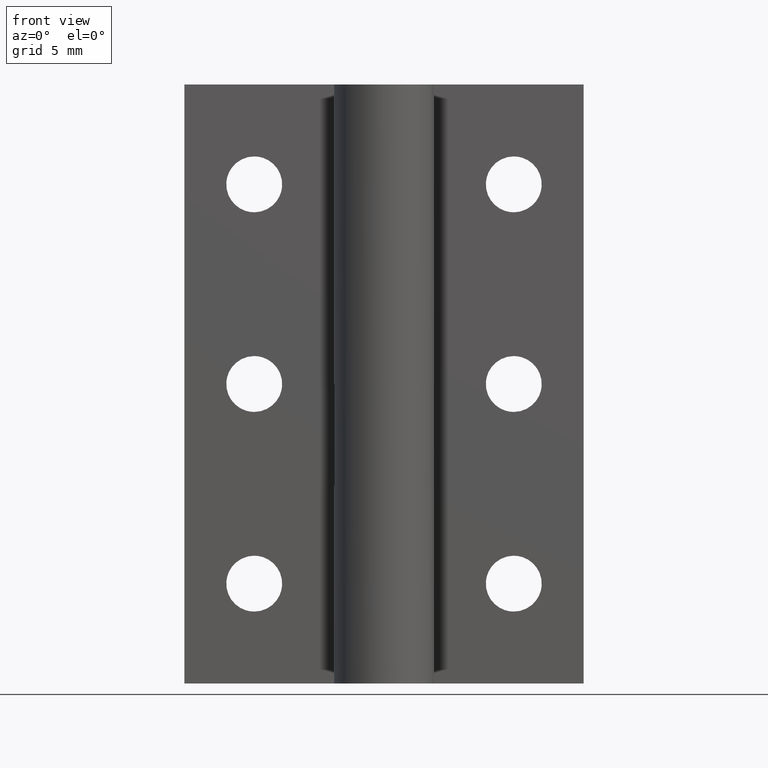
[diagram: clean part render]
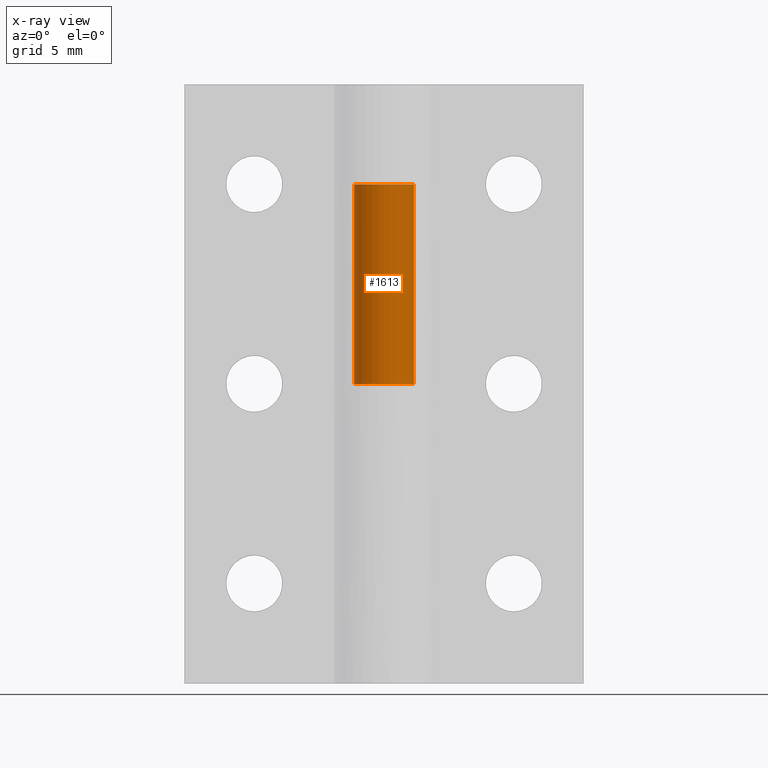
[diagram: x-ray — body ghosted, one internal face saturated and labeled with its STEP entity id]
A machine part, front view, then the same camera in x-ray: the body is ghosted and one INTERNAL B-rep face — a face not visible from any outside direction — is saturated and labeled: STEP entity #1613.
In plain terms, the highlighted face is a freeform B-spline surface patch.
Its self-contained STEP definition (entity closure, byte-faithful):
#869=CARTESIAN_POINT('',(0.455540400051268,1.429154625616532,25.0));
#870=VERTEX_POINT('',#869);
#876=CARTESIAN_POINT('',(-0.897680820069798,1.201735888321064,25.0));
#877=VERTEX_POINT('',#876);
#878=CARTESIAN_POINT('',(-0.897680820069798,1.201735888321064,25.0));
#879=CARTESIAN_POINT('',(-1.843188879337448,0.495453868890164,25.0));
#880=CARTESIAN_POINT('',(-1.379222912589689,-0.589698361357411,25.0));
#881=CARTESIAN_POINT('',(-0.915256945841930,-1.674850591604986,25.0));
#882=CARTESIAN_POINT('',(0.248599795397756,-1.479255941927628,25.0));
#883=CARTESIAN_POINT('',(1.412456536637444,-1.283661292250269,25.0));
#884=CARTESIAN_POINT('',(1.496217350875996,-0.106459564800990,25.0));
#885=CARTESIAN_POINT('',(1.579978165114550,1.070742162648288,25.0));
#886=CARTESIAN_POINT('',(0.455540400051268,1.429154625616532,25.0));
#894=(BOUNDED_CURVE()B_SPLINE_CURVE(2,(#878,#879,#880,#881,#882,#883,#884,#885,#886),.UNSPECIFIED.,.F.,.U.)B_SPLINE_CURVE_WITH_KNOTS((3,2,2,2,3),(0.0,0.250000000000000,0.500000000000000,0.750000000000000,1.0),.UNSPECIFIED.)CURVE()GEOMETRIC_REPRESENTATION_ITEM()RATIONAL_B_SPLINE_CURVE((1.0,0.785909278211514,1.0,0.785909278211514,1.0,0.785909278211514,1.0,0.785909278211514,1.0))REPRESENTATION_ITEM(''));
#895=EDGE_CURVE('',#877,#870,#894,.T.);
#1112=CARTESIAN_POINT('',(-0.897680820069798,1.201735888321064,15.0));
#1113=VERTEX_POINT('',#1112);
#1119=CARTESIAN_POINT('',(0.455540400051268,1.429154625616532,15.0));
#1120=VERTEX_POINT('',#1119);
#1121=CARTESIAN_POINT('',(-0.897680820069798,1.201735888321064,15.0));
#1122=CARTESIAN_POINT('',(-1.843188879337448,0.495453868890164,15.0));
#1123=CARTESIAN_POINT('',(-1.379222912589689,-0.589698361357411,15.0));
#1124=CARTESIAN_POINT('',(-0.915256945841930,-1.674850591604986,15.0));
#1125=CARTESIAN_POINT('',(0.248599795397756,-1.479255941927628,15.0));
#1126=CARTESIAN_POINT('',(1.412456536637444,-1.283661292250269,15.0));
#1127=CARTESIAN_POINT('',(1.496217350875996,-0.106459564800990,15.0));
#1128=CARTESIAN_POINT('',(1.579978165114550,1.070742162648288,15.0));
#1129=CARTESIAN_POINT('',(0.455540400051268,1.429154625616532,15.0));
#1137=(BOUNDED_CURVE()B_SPLINE_CURVE(2,(#1121,#1122,#1123,#1124,#1125,#1126,#1127,#1128,#1129),.UNSPECIFIED.,.F.,.U.)B_SPLINE_CURVE_WITH_KNOTS((3,2,2,2,3),(0.0,0.250000000000000,0.500000000000000,0.750000000000000,1.0),.UNSPECIFIED.)CURVE()GEOMETRIC_REPRESENTATION_ITEM()RATIONAL_B_SPLINE_CURVE((1.0,0.785909278211514,1.0,0.785909278211514,1.0,0.785909278211514,1.0,0.785909278211514,1.0))REPRESENTATION_ITEM(''));
#1138=EDGE_CURVE('',#1113,#1120,#1137,.T.);
#1572=CARTESIAN_POINT('',(-0.897680820069798,1.201735888321064,25.0));
#1573=CARTESIAN_POINT('',(-0.897680820069798,1.201735888321064,15.0));
#1574=QUASI_UNIFORM_CURVE('',1,(#1572,#1573),.UNSPECIFIED.,.F.,.U.);
#1575=EDGE_CURVE('',#877,#1113,#1574,.T.);
#1581=CARTESIAN_POINT('',(-0.856509171119131,1.231418710183022,25.250000000000000));
#1582=CARTESIAN_POINT('',(-0.856509171119131,1.231418710183022,14.743750000000000));
#1583=CARTESIAN_POINT('',(-2.432653244943885,0.135136963712460,25.249999999999996));
#1584=CARTESIAN_POINT('',(-2.432653244943885,0.135136963712460,14.743749999999997));
#1585=CARTESIAN_POINT('',(-0.987631989471246,-1.128974336897463,25.250000000000000));
#1586=CARTESIAN_POINT('',(-0.987631989471246,-1.128974336897463,14.743750000000000));
#1587=CARTESIAN_POINT('',(0.457389266001392,-2.393085637507388,25.249999999999996));
#1588=CARTESIAN_POINT('',(0.457389266001392,-2.393085637507388,14.743749999999997));
#1589=CARTESIAN_POINT('',(1.334368777214641,-0.685171486851798,25.250000000000000));
#1590=CARTESIAN_POINT('',(1.334368777214641,-0.685171486851798,14.743750000000000));
#1591=CARTESIAN_POINT('',(2.211348288427890,1.022742663803792,25.249999999999996));
#1592=CARTESIAN_POINT('',(2.211348288427890,1.022742663803792,14.743749999999997));
#1593=CARTESIAN_POINT('',(0.342005941445693,1.460490306717523,25.250000000000000));
#1594=CARTESIAN_POINT('',(0.342005941445693,1.460490306717523,14.743750000000000));
#1602=(BOUNDED_SURFACE()B_SPLINE_SURFACE(1,2,((#1581,#1583,#1585,#1587,#1589,#1591,#1593),(#1582,#1584,#1586,#1588,#1590,#1592,#1594)),.UNSPECIFIED.,.F.,.F.,.U.)B_SPLINE_SURFACE_WITH_KNOTS((2,2),(3,2,2,3),(0.0,10.506250000000010),(0.0,2.926395531395168,5.852791062790336,8.779186594185504),.UNSPECIFIED.)GEOMETRIC_REPRESENTATION_ITEM()RATIONAL_B_SPLINE_SURFACE(((1.0,0.615661475325658,1.0,0.615661475325658,1.0,0.615661475325658,1.0),(1.0,0.615661475325658,1.0,0.615661475325658,1.0,0.615661475325658,1.0)))REPRESENTATION_ITEM('')SURFACE());
#1603=ORIENTED_EDGE('',*,*,#1575,.F.);
#1604=ORIENTED_EDGE('',*,*,#895,.T.);
#1605=CARTESIAN_POINT('',(0.455540400051268,1.429154625616532,25.0));
#1606=CARTESIAN_POINT('',(0.455540400051268,1.429154625616532,15.0));
#1607=QUASI_UNIFORM_CURVE('',1,(#1605,#1606),.UNSPECIFIED.,.F.,.U.);
#1608=EDGE_CURVE('',#870,#1120,#1607,.T.);
#1609=ORIENTED_EDGE('',*,*,#1608,.T.);
#1610=ORIENTED_EDGE('',*,*,#1138,.F.);
#1611=EDGE_LOOP('',(#1603,#1604,#1609,#1610));
#1612=FACE_OUTER_BOUND('',#1611,.T.);
#1613=ADVANCED_FACE('',(#1612),#1602,.F.);